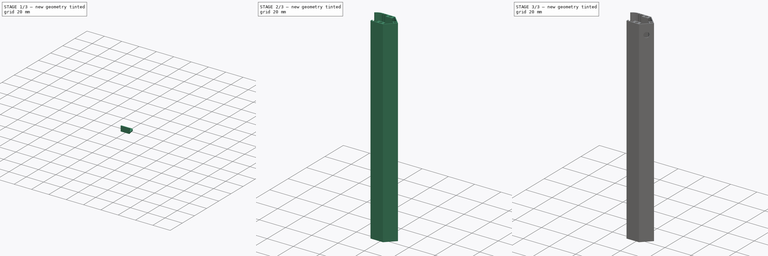
[diagram: build sequence overview — one tinted view per stage of 3, left to right]
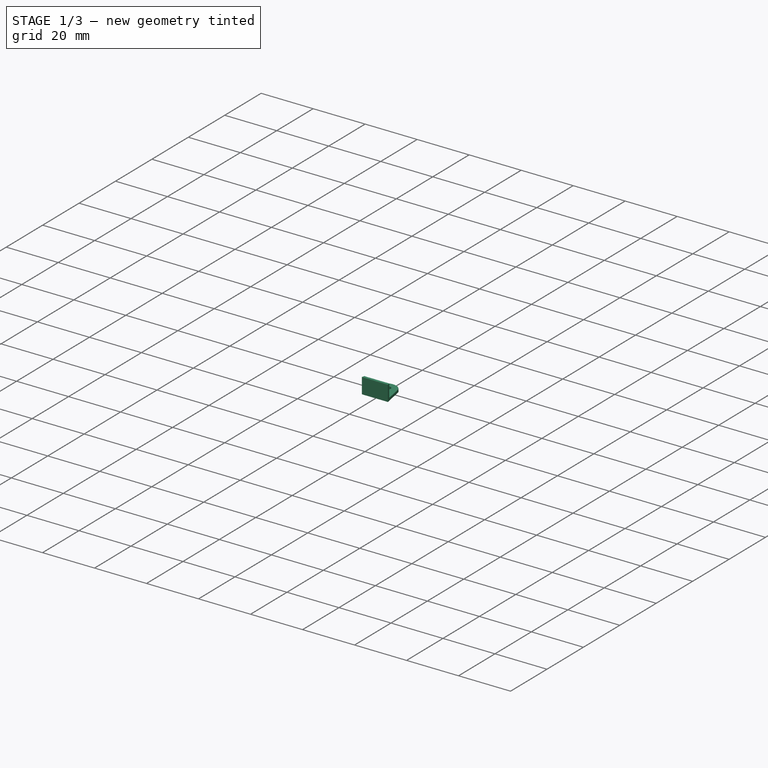
[diagram: stage 1 of 3 — iso view after this stage's code; geometry added in this stage tinted green]
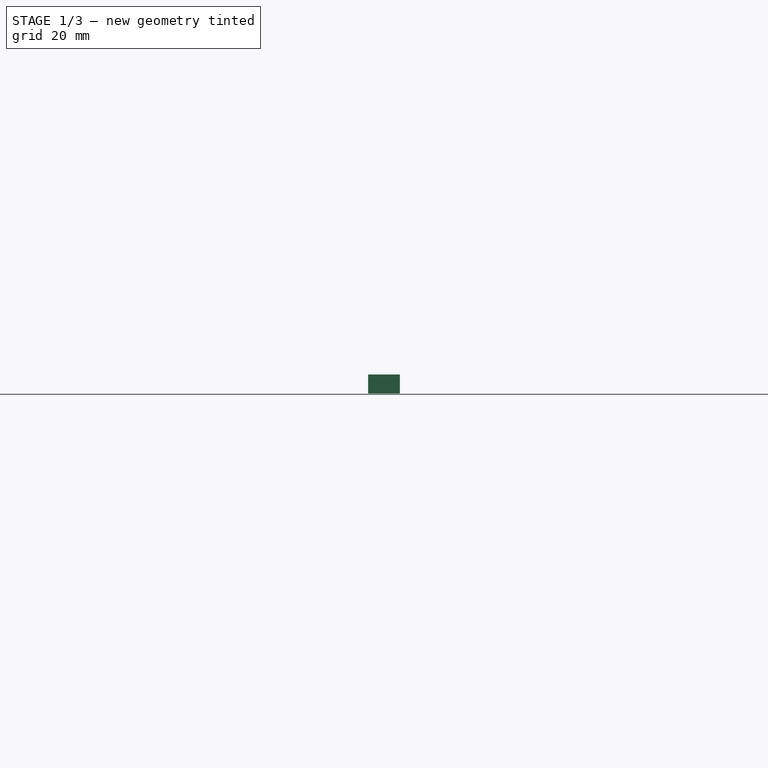
[diagram: stage 1 of 3 — front view after this stage's code; geometry added in this stage tinted green]
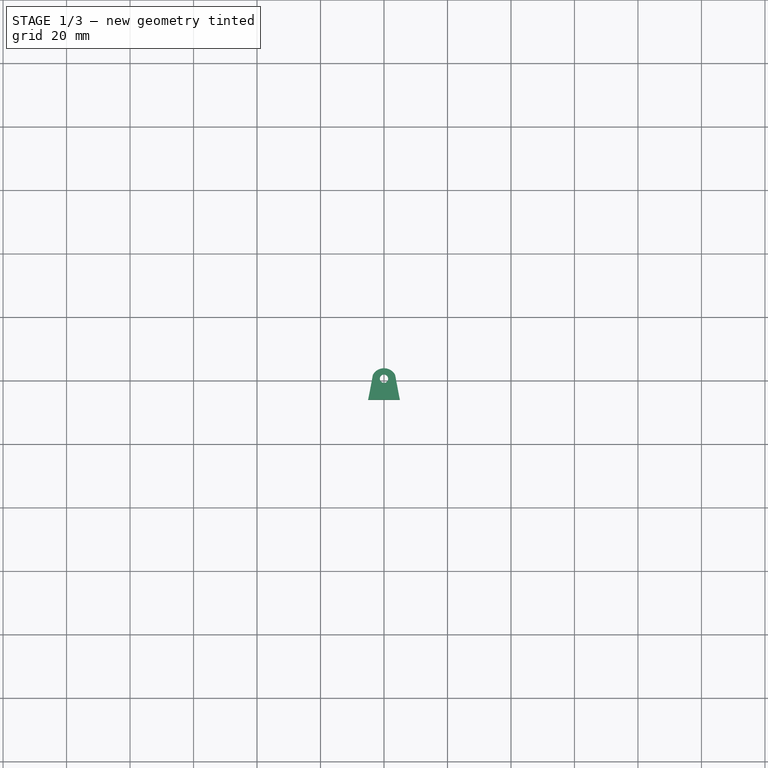
[diagram: stage 1 of 3 — top view after this stage's code; geometry added in this stage tinted green]
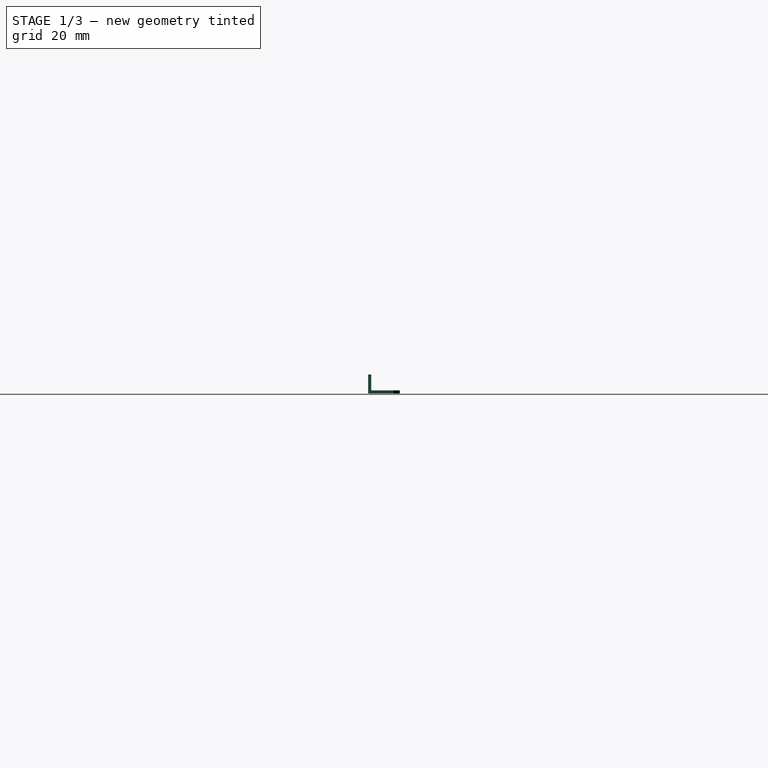
[diagram: stage 1 of 3 — right view after this stage's code; geometry added in this stage tinted green]
FCSTD DOCUMENT  (FreeCAD 0.17R13522 (Git))
Label: DingDeng-jwei-1.0
License: All rights reserved
LicenseURL: http://en.wikipedia.org/wiki/All_rights_reserved
objects: Sketcher::SketchObject×5, PartDesign::Pad×4, PartDesign::Body×3, PartDesign::Pocket×1
note: 18 computed .brp shape members not serialized (recipe doc carries the construction recipe); baked Part::Feature solids carry a one-line shape summary decoded from their .brp

FEATURE [PartDesign::Body] Body
  Group = -> [Sketch,Pad,Sketch004,Pocket]
  Origin = -> Origin
  Tip = -> Pocket
FEATURE [Sketcher::SketchObject] Sketch005
  MapMode = 5
  Support = -> [XY_Plane002]
  sketch-geometry (7):
    g0: ArcOfCircle CenterX=0 CenterY=0 CenterZ=0 NormalX=0 NormalY=0 NormalZ=1 AngleXU=0 Radius=4 StartAngle=0.505361 EndAngle=2.63623
    g1: LineSegment StartX=-5 StartY=-6 StartZ=0 EndX=5 EndY=-6 EndZ=0
    g2: LineSegment StartX=-5 StartY=-6 StartZ=0 EndX=-3.5 EndY=1.93649 EndZ=0
    g3: LineSegment StartX=5 StartY=-6 StartZ=0 EndX=3.5 EndY=1.93649 EndZ=0
    g4: Circle CenterX=0 CenterY=0.7 CenterZ=0 NormalX=0 NormalY=0 NormalZ=1 AngleXU=0 Radius=1.3
    g5: GeomPoint X=0 Y=4 Z=0
    g6: GeomPoint X=0 Y=2 Z=0
  constraints (20):
    c: PointOnObject(g0,g-2)
    c: DistanceX(g0,g0) = 7
    c: Horizontal(g0,g0)
    c: Radius(g0) = 4
    c: Horizontal(g1)
    c: DistanceX(g1,g1) = 10
    c: DistanceX(g-2,g1) = -5
    c: Distance(g-1,g1) = 6
    c: Coincident(g0,g-1)
    c: Coincident(g2,g1)
    c: Coincident(g2,g0)
    c: Coincident(g3,g1)
    c: Coincident(g3,g0)
    c: Radius(g4) = 1.3
    c: PointOnObject(g4,g-2)
    c: PointOnObject(g5,g0)
    c: PointOnObject(g6,g4)
    c: PointOnObject(g5,g-2)
    c: PointOnObject(g6,g-2)
    c: DistanceY(g6,g5) = 2
FEATURE [PartDesign::Pad] Pad002
  Length = 1
  Length2 = 100
  Profile = -> Sketch005
  Type = 0
FEATURE [Sketcher::SketchObject] Sketch006
  ExternalGeometry = -> [Pad002]
  MapMode = 5
  Placement = pos=(0,0,1) rot=(0,0,1;0rad)
  Support = -> [Pad002]
  sketch-geometry (4):
    g0: LineSegment StartX=-4.811 StartY=-5 StartZ=0 EndX=4.811 EndY=-5 EndZ=0
    g1: LineSegment StartX=-4.811 StartY=-5 StartZ=0 EndX=-5 EndY=-6 EndZ=0
    g2: LineSegment StartX=5 StartY=-6 StartZ=0 EndX=4.811 EndY=-5 EndZ=0
    g3: LineSegment StartX=5 StartY=-6 StartZ=0 EndX=-5 EndY=-6 EndZ=0
  constraints (10):
    c: PointOnObject(g0,g-3)
    c: PointOnObject(g0,g-4)
    c: Horizontal(g0)
    c: Distance(g0,g-5) = 1
    c: Coincident(g1,g0)
    c: Coincident(g1,g-5)
    c: Coincident(g2,g-5)
    c: Coincident(g2,g0)
    c: Coincident(g3,g2)
    c: Coincident(g3,g1)
FEATURE [PartDesign::Pad] Pad003
  BaseFeature = -> Pad002
  Length = 5
  Length2 = 100
  Profile = -> Sketch006
  Type = 0
FEATURE [PartDesign::Body] Body002
  Group = -> [Sketch005,Pad002,Sketch006,Pad003]
  Origin = -> Origin002
  Tip = -> Pad003
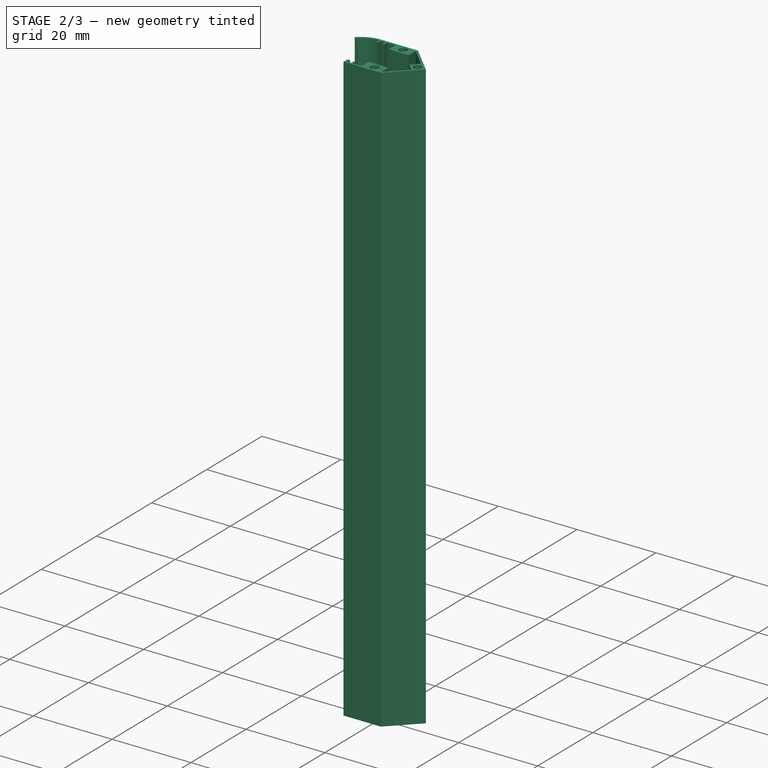
[diagram: stage 2 of 3 — iso view after this stage's code; geometry added in this stage tinted green]
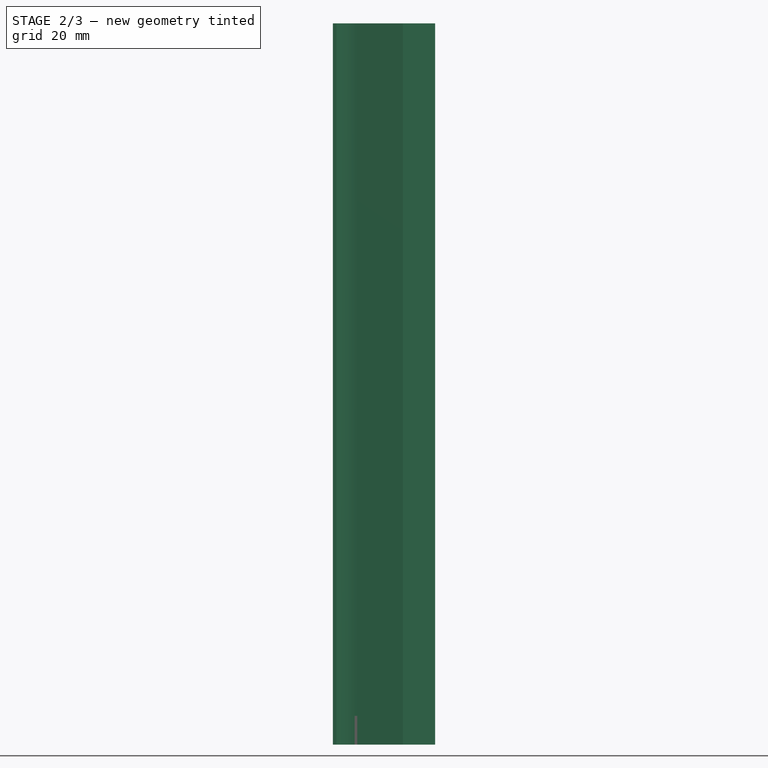
[diagram: stage 2 of 3 — front view after this stage's code; geometry added in this stage tinted green]
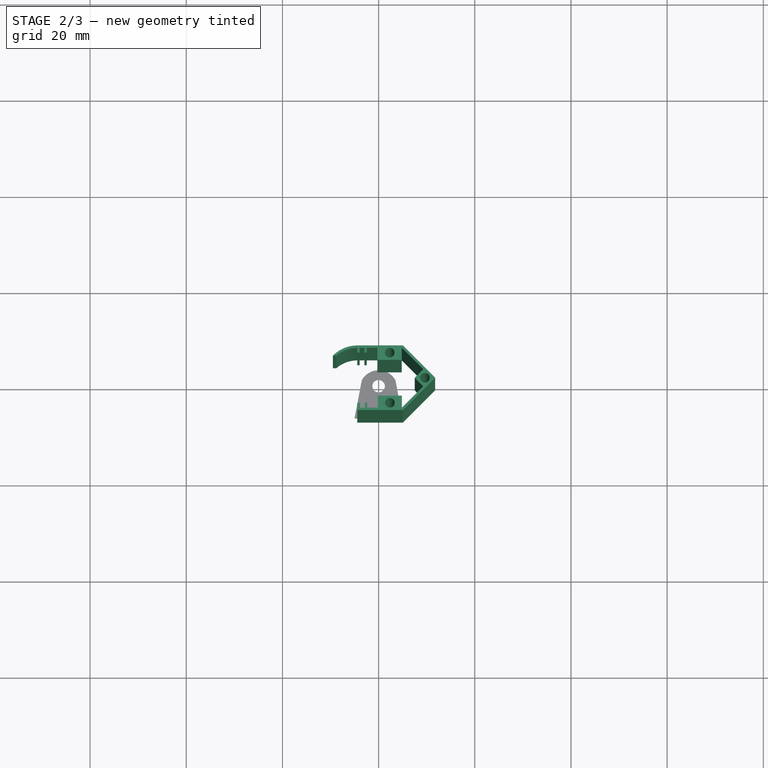
[diagram: stage 2 of 3 — top view after this stage's code; geometry added in this stage tinted green]
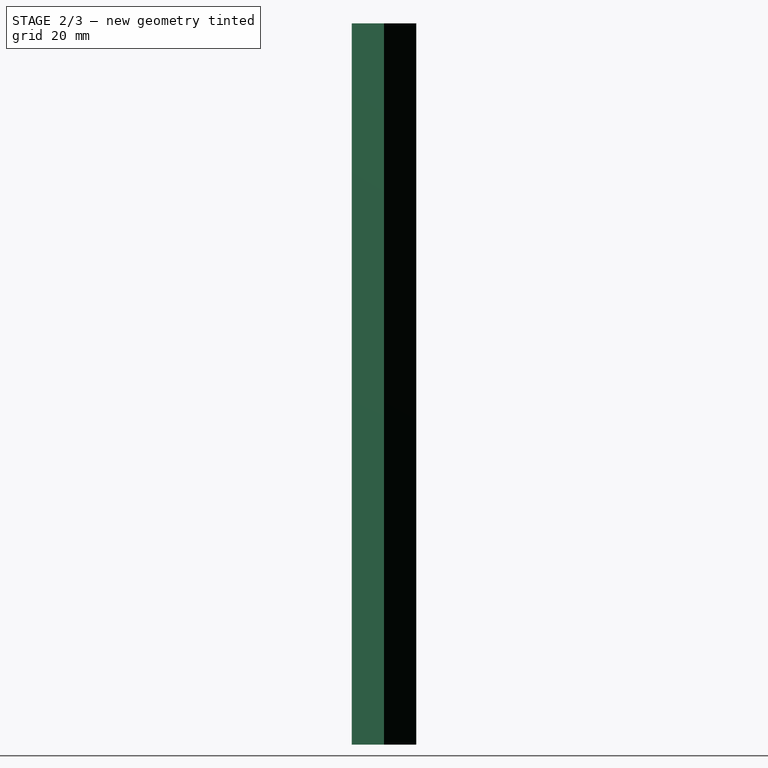
[diagram: stage 2 of 3 — right view after this stage's code; geometry added in this stage tinted green]
FEATURE [Sketcher::SketchObject] Sketch
  MapMode = 5
  Support = -> [XY_Plane]
  sketch-geometry (39):
    g0: LineSegment StartX=-4.45419 StartY=-6.8662 StartZ=0 EndX=5.04581 EndY=-6.8662 EndZ=0
    g1: LineSegment StartX=5.04581 StartY=6.56883 StartZ=0 EndX=11.7633 EndY=-0.148687 EndZ=0
    g2: LineSegment StartX=11.7633 StartY=-0.148687 StartZ=0 EndX=5.04581 EndY=-6.8662 EndZ=0
    g3: LineSegment StartX=-4.45419 StartY=6.56883 StartZ=0 EndX=5.04581 EndY=6.56883 EndZ=0
    g4: ArcOfCircle CenterX=-4.40552 CenterY=-0.617104 CenterZ=0 NormalX=0 NormalY=0 NormalZ=1 AngleXU=0 Radius=7.1861 StartAngle=1.57757 EndAngle=2.36297
    g5: LineSegment StartX=-4.45419 StartY=-6.8662 StartZ=0 EndX=-4.45419 EndY=-5.3662 EndZ=0
    g6: LineSegment StartX=-4.45419 StartY=-5.3662 StartZ=0 EndX=-3.85419 EndY=-5.3662 EndZ=0
    g7: LineSegment StartX=-3.85419 StartY=-5.3662 StartZ=0 EndX=-3.85419 EndY=-6.3662 EndZ=0
    g8: ArcOfCircle CenterX=-4.40552 CenterY=-0.617104 CenterZ=0 NormalX=0 NormalY=0 NormalZ=1 AngleXU=0 Radius=6.68611 StartAngle=1.57808 EndAngle=2.28621
    g9: LineSegment StartX=-9.52116 StartY=4.4297 StartZ=0 EndX=-8.79116 EndY=4.4297 EndZ=0
    g10: GeomPoint X=-2.85419 Y=-6.3662 Z=0
    g11: GeomPoint X=-2.35419 Y=-6.3662 Z=0
    g12: LineSegment StartX=-2.85419 StartY=-6.3662 StartZ=0 EndX=-2.85419 EndY=-5.3662 EndZ=0
    g13: LineSegment StartX=-2.85419 StartY=-5.3662 StartZ=0 EndX=-2.35419 EndY=-5.3662 EndZ=0
    g14: LineSegment StartX=-2.35419 StartY=-5.3662 StartZ=0 EndX=-2.35419 EndY=-6.3662 EndZ=0
    g15: GeomPoint X=-0.154193 Y=-6.3662 Z=0
    g16: LineSegment StartX=-3.85419 StartY=-6.3662 StartZ=0 EndX=-2.85419 EndY=-6.3662 EndZ=0
    g17: LineSegment StartX=-2.35419 StartY=-6.3662 StartZ=0 EndX=-0.154193 EndY=-6.3662 EndZ=0
    g18: LineSegment StartX=-4.45419 StartY=5.06883 StartZ=0 EndX=-4.45419 EndY=6.06883 EndZ=0
    g19: LineSegment StartX=-4.45419 StartY=5.06883 StartZ=0 EndX=-3.95419 EndY=5.06883 EndZ=0
    g20: LineSegment StartX=-3.95419 StartY=5.06883 StartZ=0 EndX=-3.95419 EndY=6.06883 EndZ=0
    g21: LineSegment StartX=-2.95419 StartY=5.06883 StartZ=0 EndX=-2.95419 EndY=6.06883 EndZ=0
    g22: LineSegment StartX=-2.95419 StartY=5.06883 StartZ=0 EndX=-2.45419 EndY=5.06883 EndZ=0
    g23: LineSegment StartX=-2.45419 StartY=5.06883 StartZ=0 EndX=-2.45419 EndY=6.06883 EndZ=0
    g24: LineSegment StartX=-3.95419 StartY=6.06883 StartZ=0 EndX=-2.95419 EndY=6.06883 EndZ=0
    g25: LineSegment StartX=-2.45419 StartY=6.06883 StartZ=0 EndX=-0.254193 EndY=6.06883 EndZ=0
    g26: LineSegment StartX=-0.154193 StartY=-6.3662 StartZ=0 EndX=-0.154193 EndY=-3.8662 EndZ=0
    g27: LineSegment StartX=4.85084 StartY=-6.3662 StartZ=0 EndX=4.85084 EndY=-3.8662 EndZ=0
    g28: LineSegment StartX=-0.254193 StartY=6.06883 StartZ=0 EndX=-0.254193 EndY=3.56883 EndZ=0
    g29: LineSegment StartX=4.81411 StartY=6.06883 StartZ=0 EndX=4.81411 EndY=3.56883 EndZ=0
    g30: Circle CenterX=2.35084 CenterY=-5.3662 CenterZ=0 NormalX=0 NormalY=0 NormalZ=1 AngleXU=0 Radius=1
    g31: Circle CenterX=2.31411 CenterY=5.06883 CenterZ=0 NormalX=0 NormalY=0 NormalZ=1 AngleXU=0 Radius=1
    g32: LineSegment StartX=-0.154193 StartY=-3.8662 StartZ=0 EndX=4.85084 EndY=-3.8662 EndZ=0
    g33: LineSegment StartX=-0.254193 StartY=3.56883 StartZ=0 EndX=4.81411 EndY=3.56883 EndZ=0
    g34: Circle CenterX=9.642 CenterY=-0.148687 CenterZ=0 NormalX=0 NormalY=0 NormalZ=1 AngleXU=0 Radius=1
    g35: LineSegment StartX=9.27618 StartY=1.60675 StartZ=0 EndX=7.51351 EndY=-0.185418 EndZ=0
    g36: LineSegment StartX=9.26385 StartY=-1.95319 StartZ=0 EndX=7.51351 EndY=-0.185418 EndZ=0
    g37: LineSegment StartX=4.85084 StartY=-6.3662 StartZ=0 EndX=9.26385 EndY=-1.95319 EndZ=0
    g38: LineSegment StartX=4.81411 StartY=6.06883 StartZ=0 EndX=9.27618 EndY=1.60675 EndZ=0
  constraints (103):
    c: Horizontal(g0)
    c: DistanceX(g0,g0) = 9.5
    c: Coincident(g2,g1)
    c: Angle(g1,g2) = 1.5708
    c: Distance(g1) = 9.5
    c: Distance(g2) = 9.5
    c: Coincident(g2,g0)
    c: Horizontal(g3)
    c: DistanceX(g3,g3) = 9.5
    c: Coincident(g3,g1)
    c: Coincident(g4,g3)
    c: Angle(g2,g0) = 2.35619
    c: Angle(g4) = 0.785398
    c: Distance(g3,g4) = 5.5
    c: Distance(g29,g3) = 0.5
    c: Coincident(g5,g0)
    c: Perpendicular(g0,g5)
    c: DistanceY(g5,g5) = 1.5
    c: Coincident(g6,g5)
    c: Horizontal(g6)
    c: DistanceX(g6,g6) = 0.6
    c: Coincident(g7,g6)
    c: Vertical(g7)
    c: Coincident(g8,g4)
    c: Coincident(g9,g4)
    c: Coincident(g9,g8)
    c: Horizontal(g9)
    c: DistanceX(g9,g9) = 0.73
    c: Distance(g3,g8) = 0.5
    c: Distance(g27,g0) = 0.5
    c: Distance(g10,g7) = 1
    c: Distance(g10,g11) = 0.5
    c: Coincident(g12,g10)
    c: Vertical(g12)
    c: Coincident(g13,g12)
    c: Horizontal(g13)
    c: Coincident(g14,g13)
    c: Coincident(g14,g11)
    c: Vertical(g14)
    c: DistanceY(g12,g12) = 1
    c: Distance(g15,g11) = 2.2
    c: Coincident(g16,g7)
    c: Coincident(g16,g10)
    c: Horizontal(g16)
    c: Coincident(g17,g11)
    c: Coincident(g17,g15)
    c: Horizontal(g17)
    c: Vertical(g18)
    c: DistanceY(g18,g18) = 1
    c: Coincident(g19,g18)
    c: Horizontal(g19)
    c: DistanceX(g19,g19) = 0.5
    c: Coincident(g20,g19)
    c: Vertical(g20)
    c: Vertical(g21)
    c: DistanceY(g21,g21) = 1
    c: Distance(g21,g20) = 1
    c: Coincident(g22,g21)
    c: Horizontal(g22)
    c: Coincident(g23,g22)
    c: Vertical(g23)
    c: DistanceX(g22,g22) = 0.5
    c: Coincident(g24,g20)
    c: Coincident(g24,g21)
    c: Horizontal(g24)
    c: Coincident(g25,g23)
    c: Horizontal(g25)
    c: DistanceX(g25,g25) = 2.2
    c: Coincident(g18,g8)
    c: Coincident(g26,g15)
    c: Vertical(g26)
    c: DistanceY(g26,g26) = 2.5
    c: DistanceY(g14,g14) = 1
    c: DistanceY(g7,g7) = 1
    c: DistanceY(g20,g20) = 1
    c: DistanceY(g23,g23) = 1
    c: Vertical(g27)
    c: DistanceY(g27,g27) = 2.5
    c: Coincident(g28,g25)
    c: Vertical(g28)
    c: Vertical(g29)
    c: DistanceY(g28,g28) = 2.5
    c: DistanceY(g29,g29) = 2.5
    c: Radius(g30) = 1
    c: Distance(g30,g27) = 2.5
    c: Distance(g30,g0) = 1.5
    c: Radius(g31) = 1
    c: Distance(g31,g3) = 1.5
    c: Distance(g31,g29) = 2.5
    c: Coincident(g32,g26)
    c: Coincident(g32,g27)
    c: Coincident(g33,g28)
    c: Coincident(g33,g29)
    c: Radius(g34) = 1
    c: Distance(g34,g2) = 1.5
    c: Distance(g34,g1) = 1.5
    c: Coincident(g36,g35)
    c: Coincident(g37,g27)
    c: Coincident(g37,g36)
    c: Coincident(g38,g29)
    c: Coincident(g38,g35)
    c: Parallel(g38,g1)
    c: Parallel(g37,g2)
FEATURE [PartDesign::Pad] Pad
  Length = 150
  Length2 = 100
  Profile = -> Sketch
  Type = 0
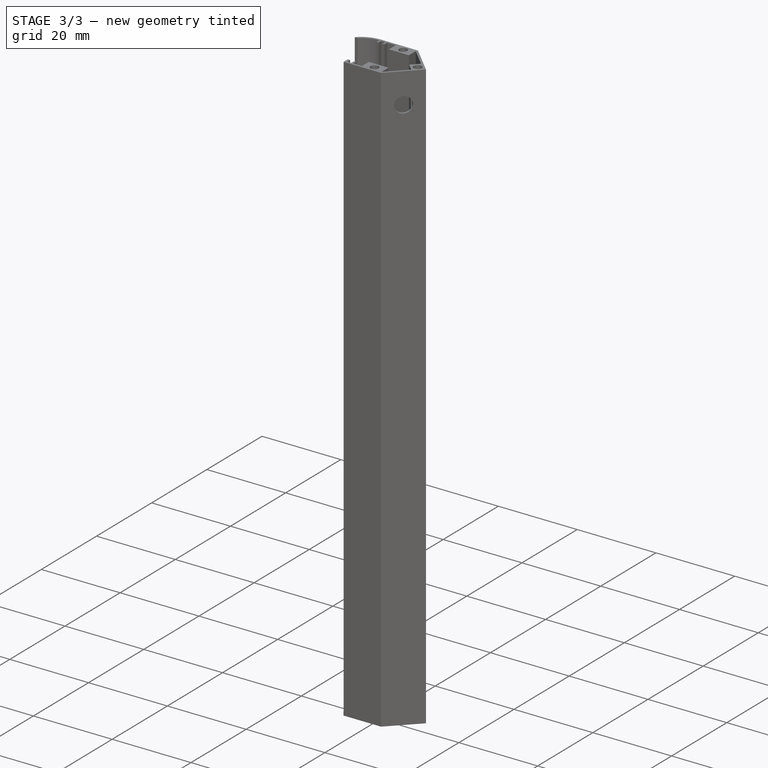
[diagram: stage 3 of 3 — iso view after this stage's code; geometry added in this stage tinted green]
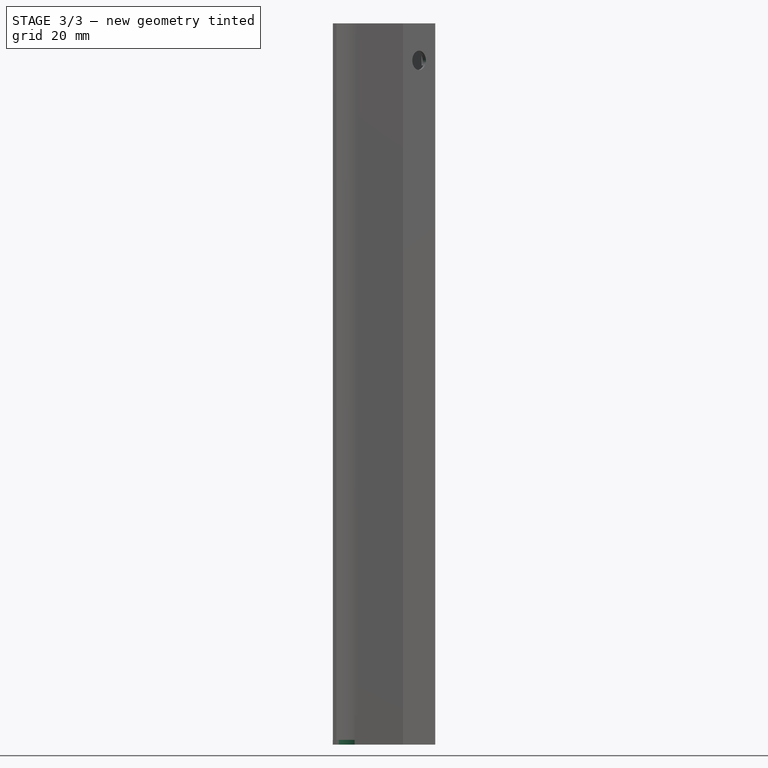
[diagram: stage 3 of 3 — front view after this stage's code; geometry added in this stage tinted green]
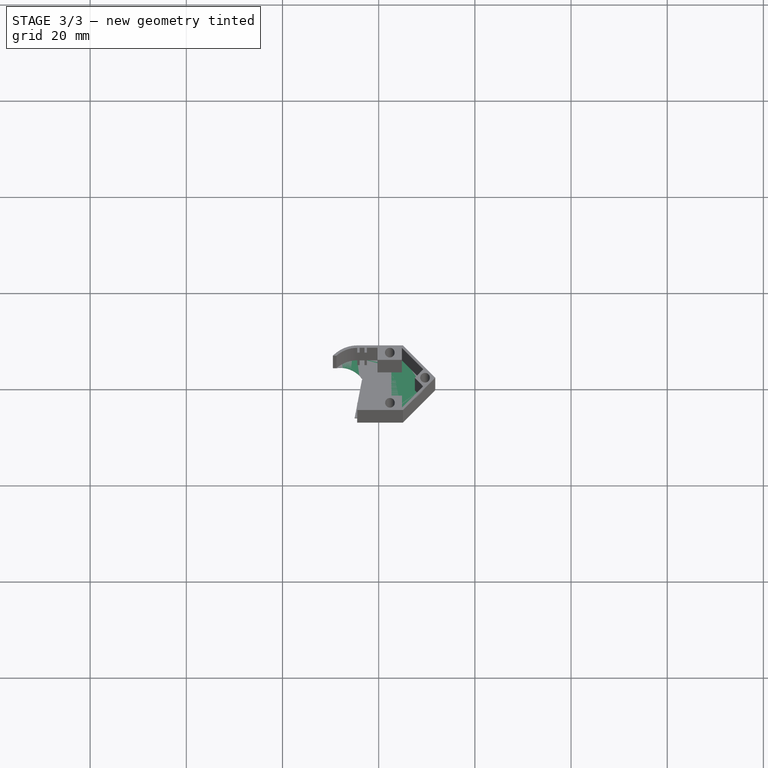
[diagram: stage 3 of 3 — top view after this stage's code; geometry added in this stage tinted green]
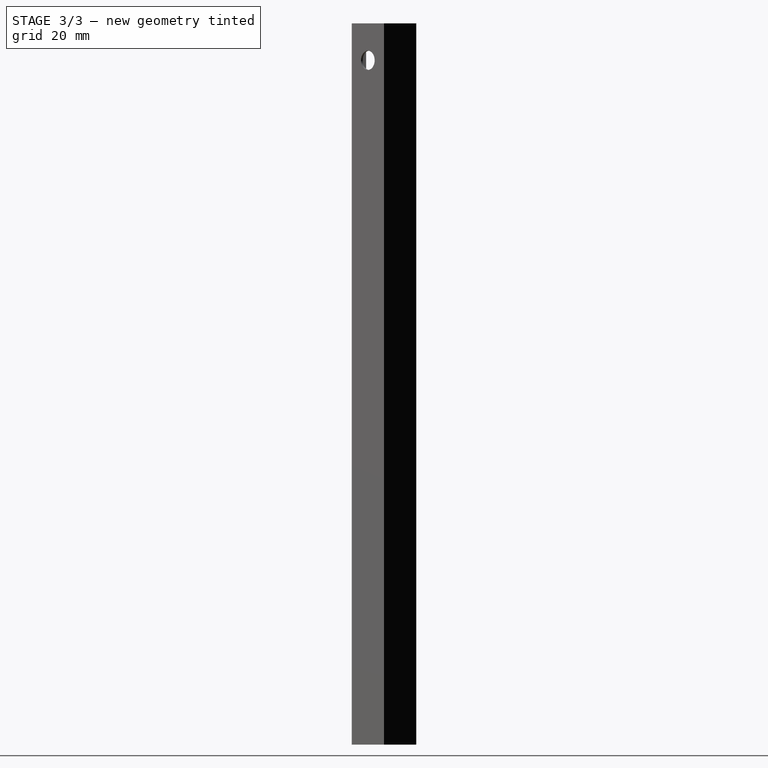
[diagram: stage 3 of 3 — right view after this stage's code; geometry added in this stage tinted green]
FEATURE [Sketcher::SketchObject] Sketch001
  MapMode = 5
  Support = -> [XY_Plane001]
  sketch-geometry (14):
    g0: LineSegment StartX=-4.48724 StartY=-6.8662 StartZ=0 EndX=5.01276 EndY=-6.8662 EndZ=0
    g1: LineSegment StartX=5.01276 StartY=6.56883 StartZ=0 EndX=11.7303 EndY=-0.148687 EndZ=0
    g2: LineSegment StartX=11.7303 StartY=-0.148687 StartZ=0 EndX=5.01276 EndY=-6.8662 EndZ=0
    g3: LineSegment StartX=-4.48724 StartY=6.56883 StartZ=0 EndX=5.01276 EndY=6.56883 EndZ=0
    g4: ArcOfCircle CenterX=-4.43857 CenterY=-0.617104 CenterZ=0 NormalX=0 NormalY=0 NormalZ=1 AngleXU=0 Radius=7.1861 StartAngle=1.57757 EndAngle=2.36297
    g5: LineSegment StartX=-4.48724 StartY=-6.8662 StartZ=0 EndX=-4.48724 EndY=-5.3662 EndZ=0
    g6: LineSegment StartX=-9.55421 StartY=4.4297 StartZ=0 EndX=-8.82421 EndY=4.4297 EndZ=0
    g7: GeomPoint X=-2.86137 Y=-6.40293 Z=0
    g8: GeomPoint X=-2.36137 Y=-6.40293 Z=0
    g9: GeomPoint X=-0.161366 Y=-6.40293 Z=0
    g10: Circle CenterX=2.36826 CenterY=-5.3662 CenterZ=0 NormalX=0 NormalY=0 NormalZ=1 AngleXU=0 Radius=1
    g11: Circle CenterX=2.33637 CenterY=5.06883 CenterZ=0 NormalX=0 NormalY=0 NormalZ=1 AngleXU=0 Radius=1
    g12: Circle CenterX=9.60895 CenterY=-0.148687 CenterZ=0 NormalX=0 NormalY=0 NormalZ=1 AngleXU=0 Radius=1
    g13: ArcOfCircle CenterX=-7.96813 CenterY=-1.04929 CenterZ=0 NormalX=0 NormalY=0 NormalZ=1 AngleXU=0 Radius=5.54547 StartAngle=5.39098 EndAngle=8.00898
  constraints (30):
    c: Horizontal(g0)
    c: DistanceX(g0,g0) = 9.5
    c: Coincident(g2,g1)
    c: Angle(g1,g2) = 1.5708
    c: Distance(g1) = 9.5
    c: Distance(g2) = 9.5
    c: Coincident(g2,g0)
    c: Horizontal(g3)
    c: DistanceX(g3,g3) = 9.5
    c: Coincident(g3,g1)
    c: Coincident(g4,g3)
    c: Angle(g2,g0) = 2.35619
    c: Angle(g4) = 0.785398
    c: Distance(g3,g4) = 5.5
    c: Coincident(g5,g0)
    c: Perpendicular(g0,g5)
    c: DistanceY(g5,g5) = 1.5
    c: Coincident(g6,g4)
    c: Horizontal(g6)
    c: DistanceX(g6,g6) = 0.73
    c: Distance(g7,g8) = 0.5
    c: Distance(g9,g8) = 2.2
    c: Radius(g10) = 1
    c: Distance(g10,g0) = 1.5
    c: Radius(g11) = 1
    c: Radius(g12) = 1
    c: Distance(g12,g2) = 1.5
    c: Distance(g12,g1) = 1.5
    c: Coincident(g13,g5)
    c: Angle(g13) = 2.61799
FEATURE [PartDesign::Pad] Pad001
  Length = 1
  Length2 = 100
  Profile = -> Sketch001
  Type = 0
FEATURE [PartDesign::Body] Body001
  Group = -> [Sketch001,Pad001]
  Origin = -> Origin001
  Tip = -> Pad001
FEATURE [Sketcher::SketchObject] Sketch004
  ExternalGeometry = -> [Pad]
  MapMode = 5
  Placement = pos=(5.956,-5.956,0) rot=(0.862856,0.357407,0.357407;1.71777rad)
  Support = -> [Pad]
  sketch-geometry (1):
    g0: Circle CenterX=3.46279 CenterY=142.307 CenterZ=0 NormalX=0 NormalY=0 NormalZ=1 AngleXU=0 Radius=2
  constraints (2):
    c: Radius(g0) = 2
    c: Distance(g0,g-3) = 4.75
FEATURE [PartDesign::Pocket] Pocket
  BaseFeature = -> Pad
  Length = 1
  Length2 = 100
  Profile = -> Sketch004
  Type = 0
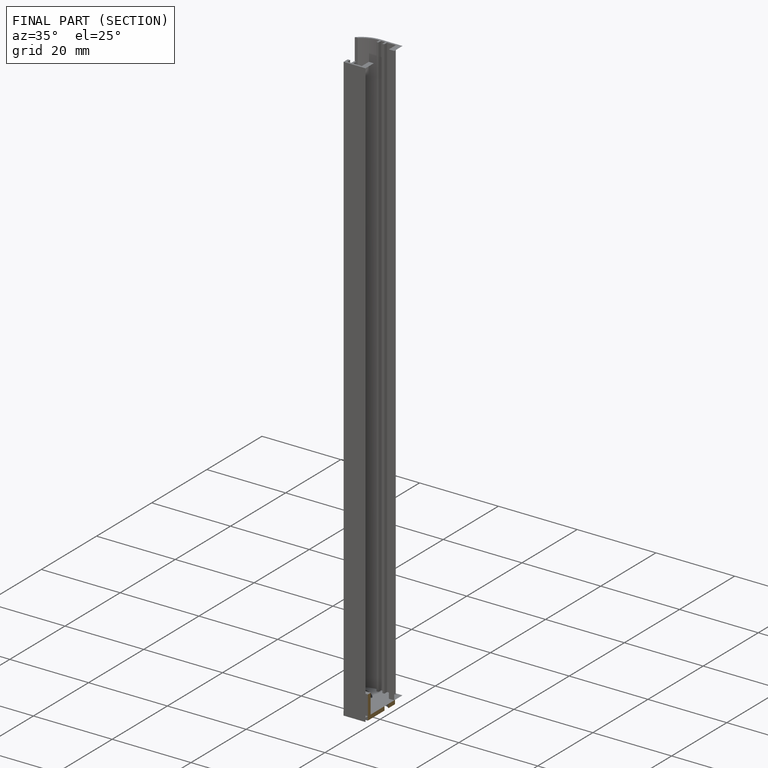
[diagram: finished part — half-section view (interior)]
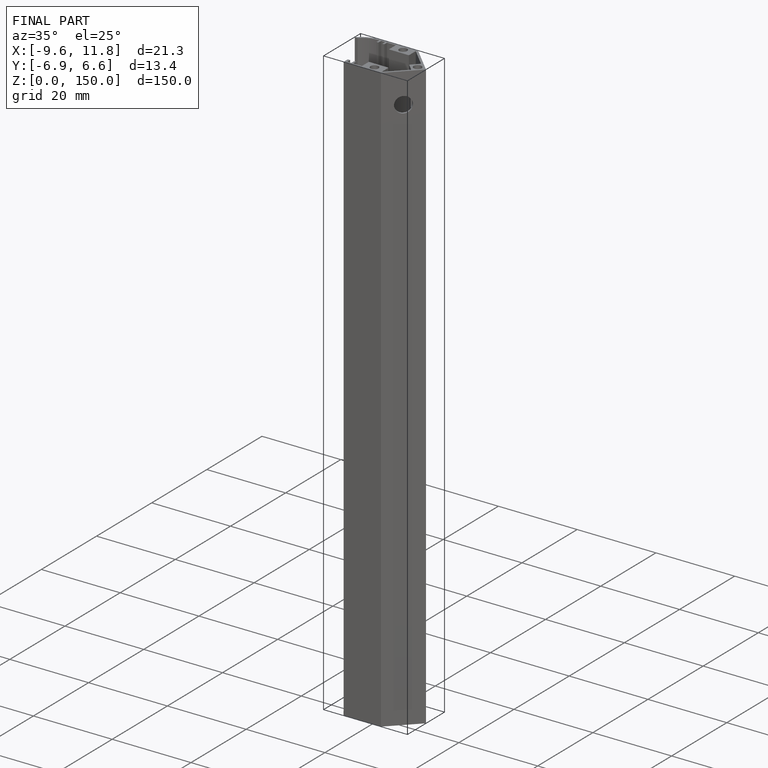
[diagram: finished part — iso view with bounding-box wireframe]
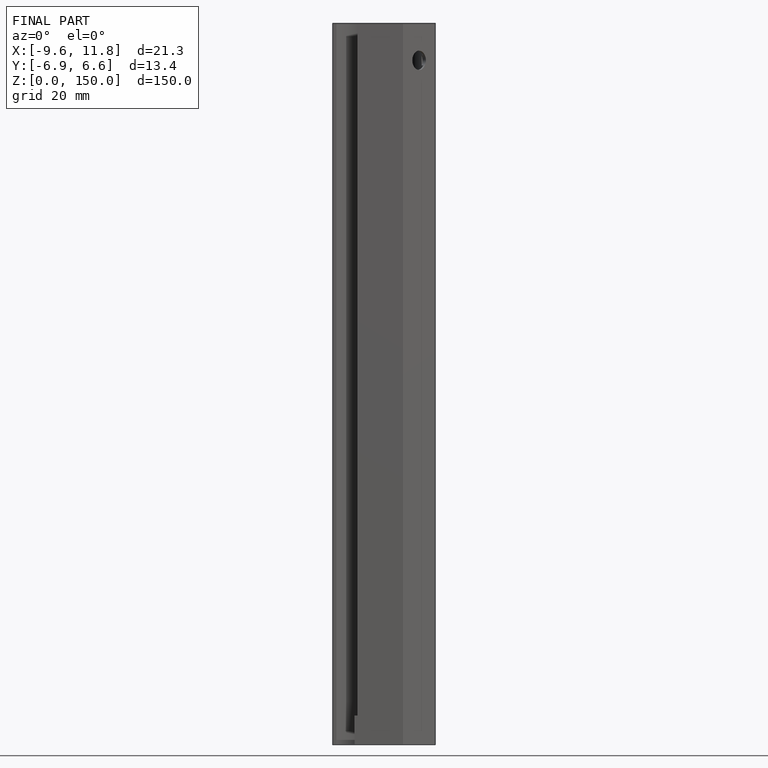
[diagram: finished part — front view with bounding-box wireframe]
